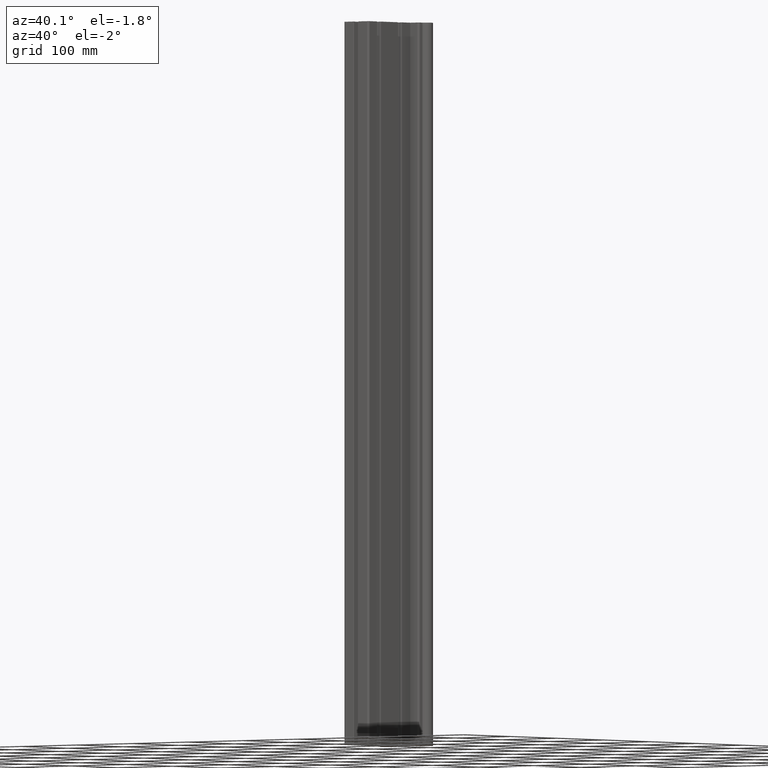
[diagram: clean part render]
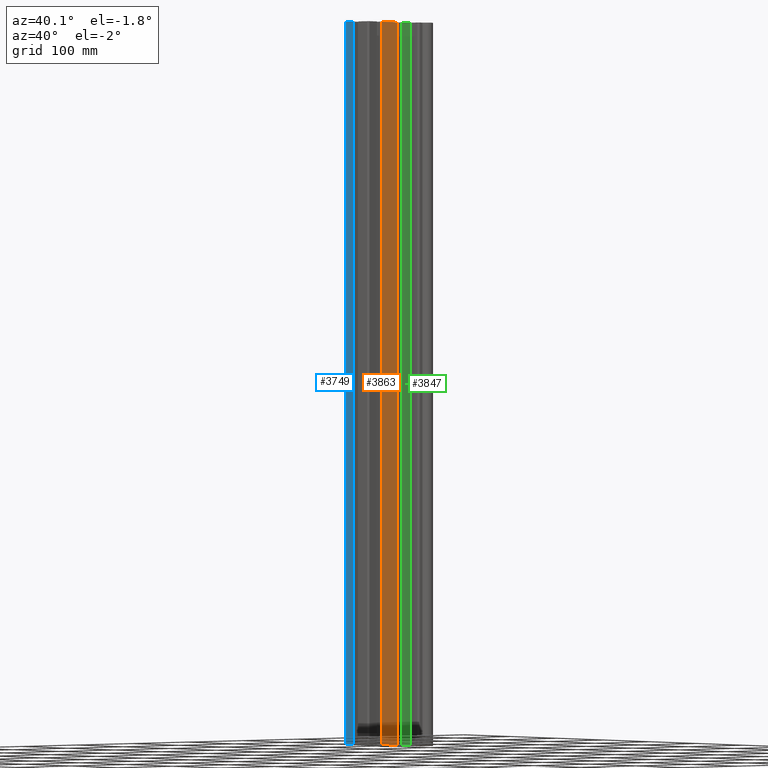
[diagram: same view with three faces highlighted in distinct colors, each labeled with its STEP entity id]
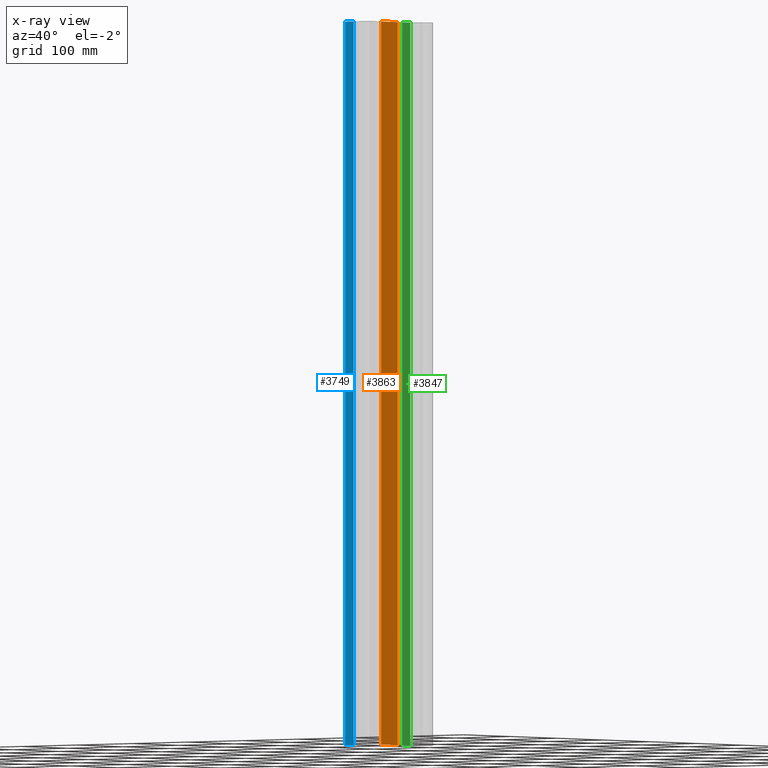
[diagram: x-ray of the same camera — body ghosted, the three highlighted faces saturated]
A machine part, auxiliary view with three faces highlighted in distinct colors.
The next image is the same camera in x-ray (body ghosted, the three faces saturated) — at least one of them is partly hidden behind the body in this view.
Their STEP definitions:

[orange] entity #3863 — the highlighted planar face has unit normal (1, 0, 0).
#115=PLANE('',#4360);
#309=FACE_OUTER_BOUND('',#510,.T.);
#510=EDGE_LOOP('',(#3354,#3355,#3356,#3357));
#841=LINE('',#5853,#1180);
#895=LINE('',#6149,#1234);
#1095=LINE('',#6736,#1434);
#1096=LINE('',#6738,#1435);
#1180=VECTOR('',#4639,10.);
#1234=VECTOR('',#4883,10.);
#1434=VECTOR('',#5563,10.);
#1435=VECTOR('',#5566,10.);
#1525=VERTEX_POINT('',#5851);
#1526=VERTEX_POINT('',#5852);
#1673=VERTEX_POINT('',#6148);
#1820=VERTEX_POINT('',#6734);
#1953=EDGE_CURVE('',#1525,#1526,#841,.T.);
#2101=EDGE_CURVE('',#1673,#1526,#895,.T.);
#2395=EDGE_CURVE('',#1525,#1820,#1095,.T.);
#2396=EDGE_CURVE('',#1673,#1820,#1096,.T.);
#3354=ORIENTED_EDGE('',*,*,#2395,.T.);
#3355=ORIENTED_EDGE('',*,*,#2396,.F.);
#3356=ORIENTED_EDGE('',*,*,#2101,.T.);
#3357=ORIENTED_EDGE('',*,*,#1953,.F.);
#3863=ADVANCED_FACE('',(#309),#115,.T.);
#4360=AXIS2_PLACEMENT_3D('',#6737,#5564,#5565);
#4639=DIRECTION('',(0.,-1.,0.));
#4883=DIRECTION('',(0.,0.,-1.));
#5563=DIRECTION('',(0.,0.,1.));
#5564=DIRECTION('center_axis',(1.,0.,0.));
#5565=DIRECTION('ref_axis',(0.,1.,0.));
#5566=DIRECTION('',(0.,1.,0.));
#5851=CARTESIAN_POINT('',(22.5000032124772,62.850000140514,-500.));
#5852=CARTESIAN_POINT('',(22.5000032124772,27.1500001638911,-500.));
#5853=CARTESIAN_POINT('',(22.5000032124772,62.850000140514,-500.));
#6148=CARTESIAN_POINT('',(22.5000032124772,27.1500001638911,500.));
#6149=CARTESIAN_POINT('',(22.5000032124772,27.1500001638911,0.));
#6734=CARTESIAN_POINT('',(22.5000032124772,62.850000140514,500.));
#6736=CARTESIAN_POINT('',(22.5000032124772,62.850000140514,0.));
#6737=CARTESIAN_POINT('Origin',(22.5000032124772,27.1500001638911,0.));
#6738=CARTESIAN_POINT('',(22.5000032124772,62.850000140514,500.));

[blue] entity #3749 — the highlighted planar face has unit normal (0, -1, 0).
#78=PLANE('',#4169);
#195=FACE_OUTER_BOUND('',#396,.T.);
#396=EDGE_LOOP('',(#2898,#2899,#2900,#2901));
#858=LINE('',#5921,#1197);
#944=LINE('',#6280,#1283);
#945=LINE('',#6283,#1284);
#946=LINE('',#6284,#1285);
#1197=VECTOR('',#4690,10.);
#1283=VECTOR('',#5030,10.);
#1284=VECTOR('',#5033,10.);
#1285=VECTOR('',#5034,10.);
#1559=VERTEX_POINT('',#5918);
#1560=VERTEX_POINT('',#5920);
#1706=VERTEX_POINT('',#6278);
#1707=VERTEX_POINT('',#6282);
#1987=EDGE_CURVE('',#1559,#1560,#858,.T.);
#2167=EDGE_CURVE('',#1706,#1559,#944,.T.);
#2168=EDGE_CURVE('',#1707,#1706,#945,.T.);
#2169=EDGE_CURVE('',#1707,#1560,#946,.T.);
#2898=ORIENTED_EDGE('',*,*,#2167,.F.);
#2899=ORIENTED_EDGE('',*,*,#2168,.F.);
#2900=ORIENTED_EDGE('',*,*,#2169,.T.);
#2901=ORIENTED_EDGE('',*,*,#1987,.F.);
#3749=ADVANCED_FACE('',(#195),#78,.T.);
#4169=AXIS2_PLACEMENT_3D('',#6281,#5031,#5032);
#4690=DIRECTION('',(-1.,-1.19620016193244E-15,0.));
#5030=DIRECTION('',(0.,0.,-1.));
#5031=DIRECTION('center_axis',(1.19620016193244E-15,-1.,0.));
#5032=DIRECTION('ref_axis',(1.,1.19620016193244E-15,0.));
#5033=DIRECTION('',(1.,1.19620016193244E-15,0.));
#5034=DIRECTION('',(0.,0.,-1.));
#5918=CARTESIAN_POINT('',(-4.65000000000021,-1.77635683940025E-14,-500.));
#5920=CARTESIAN_POINT('',(-19.4999966471381,-3.5527136788005E-14,-500.));
#5921=CARTESIAN_POINT('',(-4.65000000000021,-1.77635683940025E-14,-500.));
#6278=CARTESIAN_POINT('',(-4.65000000000021,-1.77635683940025E-14,500.));
#6280=CARTESIAN_POINT('',(-4.65000000000021,-1.77635683940025E-14,0.));
#6281=CARTESIAN_POINT('Origin',(-19.4999966471381,-3.5527136788005E-14,
0.));
#6282=CARTESIAN_POINT('',(-19.4999966471381,-3.5527136788005E-14,500.));
#6283=CARTESIAN_POINT('',(-4.65000000000021,-1.77635683940025E-14,500.));
#6284=CARTESIAN_POINT('',(-19.4999966471381,-3.5527136788005E-14,0.));

[green] entity #3847 — the highlighted planar face has unit normal (1, 0, 0).
#107=PLANE('',#4336);
#293=FACE_OUTER_BOUND('',#494,.T.);
#494=EDGE_LOOP('',(#3290,#3291,#3292,#3293));
#887=LINE('',#6117,#1226);
#1071=LINE('',#6672,#1410);
#1072=LINE('',#6675,#1411);
#1073=LINE('',#6676,#1412);
#1226=VECTOR('',#4857,10.);
#1410=VECTOR('',#5491,10.);
#1411=VECTOR('',#5494,10.);
#1412=VECTOR('',#5495,10.);
#1657=VERTEX_POINT('',#6114);
#1658=VERTEX_POINT('',#6116);
#1804=VERTEX_POINT('',#6670);
#1805=VERTEX_POINT('',#6674);
#2085=EDGE_CURVE('',#1657,#1658,#887,.T.);
#2363=EDGE_CURVE('',#1804,#1657,#1071,.T.);
#2364=EDGE_CURVE('',#1805,#1804,#1072,.T.);
#2365=EDGE_CURVE('',#1805,#1658,#1073,.T.);
#3290=ORIENTED_EDGE('',*,*,#2363,.F.);
#3291=ORIENTED_EDGE('',*,*,#2364,.F.);
#3292=ORIENTED_EDGE('',*,*,#2365,.T.);
#3293=ORIENTED_EDGE('',*,*,#2085,.F.);
#3847=ADVANCED_FACE('',(#293),#107,.T.);
#4336=AXIS2_PLACEMENT_3D('',#6673,#5492,#5493);
#4857=DIRECTION('',(2.0476735928635E-15,-1.,0.));
#5491=DIRECTION('',(0.,0.,-1.));
#5492=DIRECTION('center_axis',(1.,2.0476735928635E-15,0.));
#5493=DIRECTION('ref_axis',(-2.0476735928635E-15,1.,0.));
#5494=DIRECTION('',(-2.0476735928635E-15,1.,0.));
#5495=DIRECTION('',(0.,0.,-1.));
#6114=CARTESIAN_POINT('',(22.5000032124772,89.5000001169869,-500.));
#6116=CARTESIAN_POINT('',(22.5000032124772,72.1500001405144,-500.));
#6117=CARTESIAN_POINT('',(22.5000032124772,89.5000001169869,-500.));
#6670=CARTESIAN_POINT('',(22.5000032124772,89.5000001169869,500.));
#6672=CARTESIAN_POINT('',(22.5000032124772,89.5000001169869,0.));
#6673=CARTESIAN_POINT('Origin',(22.5000032124772,72.1500001405144,0.));
#6674=CARTESIAN_POINT('',(22.5000032124772,72.1500001405144,500.));
#6675=CARTESIAN_POINT('',(22.5000032124772,89.5000001169869,500.));
#6676=CARTESIAN_POINT('',(22.5000032124772,72.1500001405144,0.));